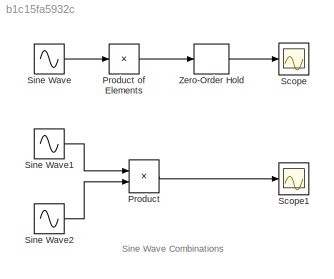
MODEL slx_b1c15fa5932c
KIND model
BLOCK [Product] Product
  InputSameDT = off
  OutDataTypeStr = Inherit: Inherit via internal rule
  Ports = [2, 1]
  SaturateOnIntegerOverflow = off
BLOCK [Product] Product of Elements
  InputSameDT = off
  Inputs = *
  OutDataTypeStr = Inherit: Inherit via internal rule
  Ports = [1, 1]
  RndMeth = Floor
  SaturateOnIntegerOverflow = off
BLOCK [Scope] Scope
  DataFormat = StructureWithTime
  Floating = off
  LimitDataPoints = off
  NumInputPorts = 1
  Ports = [1]
  SampleTime = 0
  ShowLegends = off
BLOCK [Scope] Scope1
  DataFormat = StructureWithTime
  Floating = off
  LimitDataPoints = off
  NumInputPorts = 1
  Ports = [1]
  SampleTime = 0
  SaveName = ScopeData1
  ShowLegends = off
BLOCK [Sin] Sine Wave
  Amplitude = [2 1]
  Bias = [0 1]
  Frequency = 2*pi*[10 1]*1e3
  Ports = [0, 1]
  SampleTime = 0
BLOCK [Sin] Sine Wave1
  Bias = 2
  Frequency = 2*pi*1e3
  Ports = [0, 1]
  SampleTime = 0
BLOCK [Sin] Sine Wave2
  Frequency = 2*pi*10e3
  Ports = [0, 1]
  SampleTime = 0
BLOCK [ZeroOrderHold] Zero-Order Hold
  SampleTime = 2e-5
ANNOTATION (root): Sine Wave Combinations
LINE Product of Elements:1 -> Zero-Order Hold:1
LINE Product:1 -> Scope1:1
LINE Sine Wave1:1 -> Product:1
LINE Sine Wave2:1 -> Product:2
LINE Sine Wave:1 -> Product of Elements:1
LINE Zero-Order Hold:1 -> Scope:1
